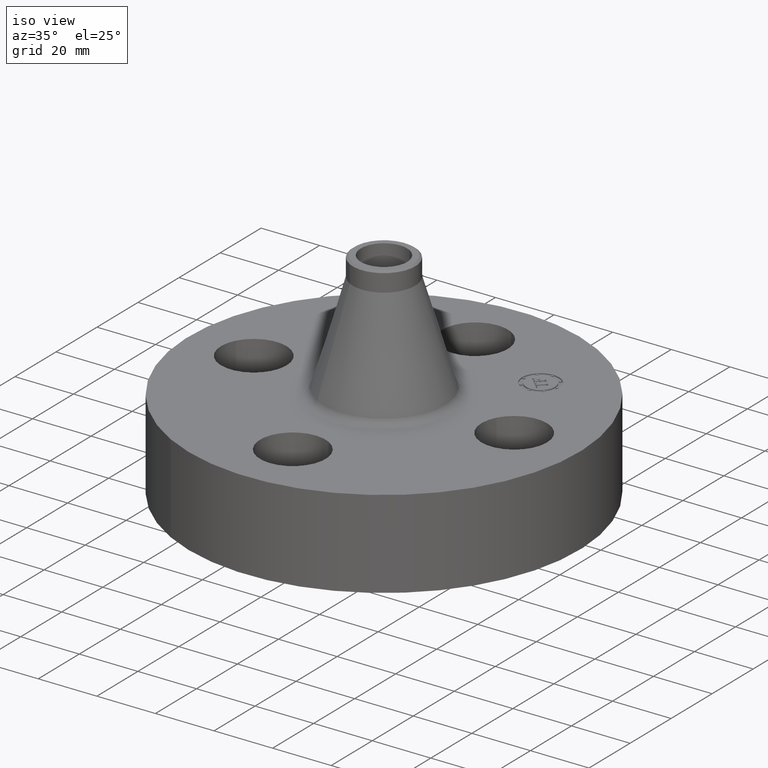
[diagram: clean part render]
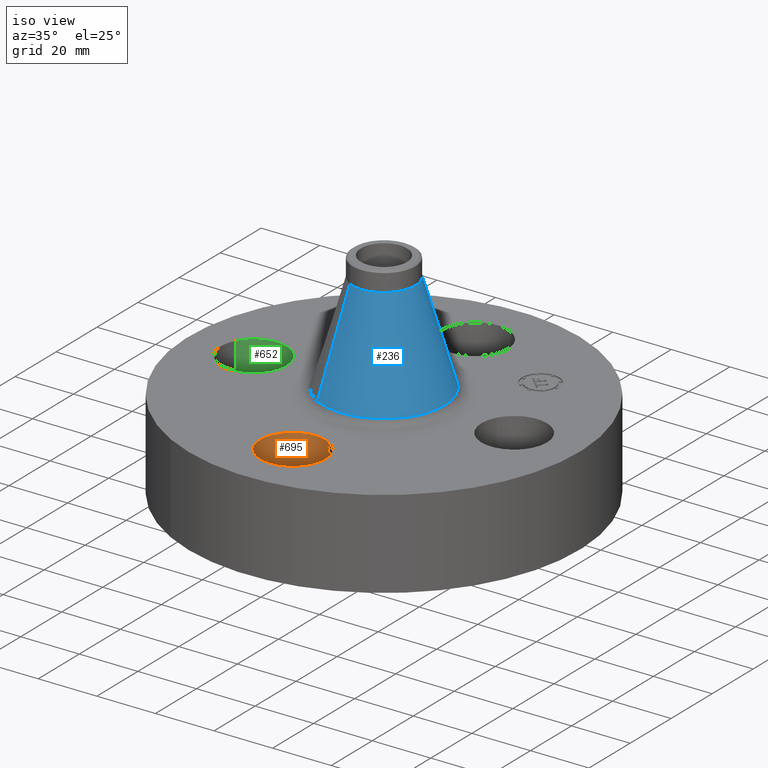
[diagram: same view with three faces highlighted in distinct colors, each labeled with its STEP entity id]
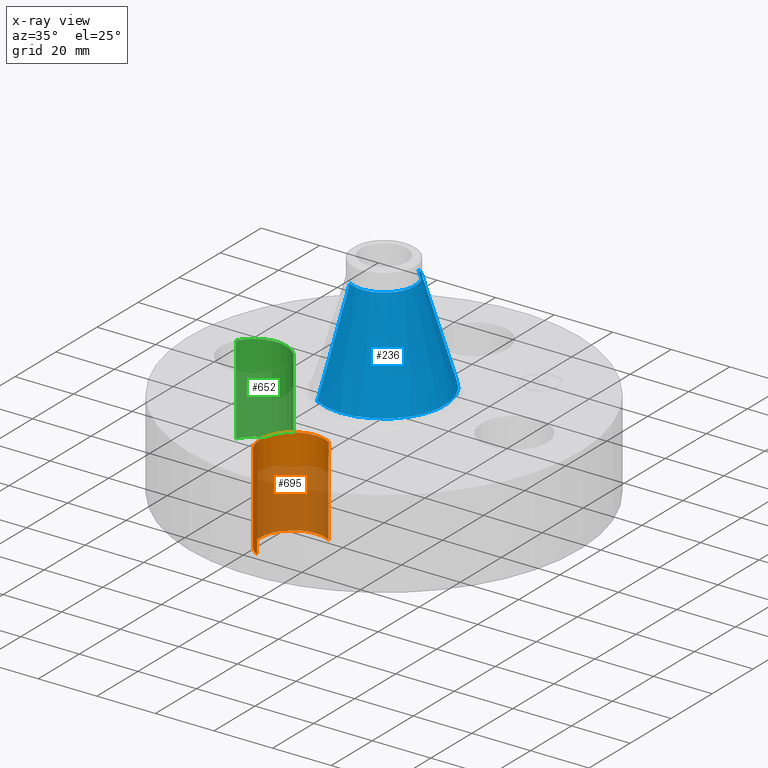
[diagram: x-ray of the same camera — body ghosted, the three highlighted faces saturated]
A machine part, iso view with three faces highlighted in distinct colors.
The next image is the same camera in x-ray (body ghosted, the three faces saturated) — at least one of them is partly hidden behind the body in this view.
Their STEP definitions:

[orange] entity #695 — the highlighted cylindrical surface (partial cylindrical patch) has radius 11.176 mm, axis along (0, -0, -1).
#523=AXIS2_PLACEMENT_3D('Circle Axis2P3D',#521,#522,$) ;
#656=AXIS2_PLACEMENT_3D('Cylinder Axis2P3D',#653,#654,#655) ;
#686=AXIS2_PLACEMENT_3D('Circle Axis2P3D',#684,#685,$) ;
#516=CARTESIAN_POINT('Vertex',(0.210947236987,-1.36386367277,0.)) ;
#518=CARTESIAN_POINT('Vertex',(-0.210947236987,-2.13613632724,0.)) ;
#521=CARTESIAN_POINT('Axis2P3D Location',(3.49676543189E-017,-1.75000000001,0.)) ;
#653=CARTESIAN_POINT('Axis2P3D Location',(1.07156594926E-016,-1.75000000001,1.18606299213)) ;
#658=CARTESIAN_POINT('Line Origine',(0.210947236987,-1.36386367277,0.595000000002)) ;
#662=CARTESIAN_POINT('Vertex',(0.210947236987,-1.36386367277,1.19)) ;
#665=CARTESIAN_POINT('Line Origine',(-0.210947236987,-2.13613632724,0.595000000002)) ;
#669=CARTESIAN_POINT('Vertex',(-0.210947236987,-2.13613632724,1.19)) ;
#684=CARTESIAN_POINT('Axis2P3D Location',(1.07156594926E-016,-1.75000000001,1.19)) ;
#522=DIRECTION('Axis2P3D Direction',(0.,0.,-0.0393700787402)) ;
#654=DIRECTION('Axis2P3D Direction',(0.,-0.,-0.0393700787402)) ;
#655=DIRECTION('Axis2P3D XDirection',(-0.0188750212049,-0.0345504945626,0.)) ;
#659=DIRECTION('Vector Direction',(0.,0.,-0.0393700787402)) ;
#666=DIRECTION('Vector Direction',(0.,0.,-0.0393700787402)) ;
#685=DIRECTION('Axis2P3D Direction',(0.,-0.,-0.0393700787402)) ;
#660=VECTOR('Line Direction',#659,0.0393700787402) ;
#667=VECTOR('Line Direction',#666,0.0393700787402) ;
#690=ORIENTED_EDGE('',*,*,#671,.F.) ;
#691=ORIENTED_EDGE('',*,*,#525,.T.) ;
#692=ORIENTED_EDGE('',*,*,#664,.T.) ;
#693=ORIENTED_EDGE('',*,*,#688,.F.) ;
#695=ADVANCED_FACE('PartBody',(#694),#657,.F.) ;
#524=CIRCLE('generated circle',#523,0.440000000002) ;
#687=CIRCLE('generated circle',#686,0.440000000002) ;
#657=CYLINDRICAL_SURFACE('generated cylinder',#656,0.440000000002) ;
#525=EDGE_CURVE('',#519,#517,#524,.T.) ;
#664=EDGE_CURVE('',#517,#663,#661,.F.) ;
#671=EDGE_CURVE('',#519,#670,#668,.F.) ;
#688=EDGE_CURVE('',#670,#663,#687,.T.) ;
#689=EDGE_LOOP('',(#690,#691,#692,#693)) ;
#694=FACE_OUTER_BOUND('',#689,.T.) ;
#661=LINE('Line',#658,#660) ;
#668=LINE('Line',#665,#667) ;
#517=VERTEX_POINT('',#516) ;
#519=VERTEX_POINT('',#518) ;
#663=VERTEX_POINT('',#662) ;
#670=VERTEX_POINT('',#669) ;

[blue] entity #236 — the highlighted conical surface has half-angle 16.546 deg.
#172=AXIS2_PLACEMENT_3D('Circle Axis2P3D',#170,#171,$) ;
#209=AXIS2_PLACEMENT_3D('Cone Axis2P3D',#206,#207,#208) ;
#220=AXIS2_PLACEMENT_3D('Circle Axis2P3D',#218,#219,$) ;
#167=CARTESIAN_POINT('Vertex',(0.392890334218,0.719180932765,1.27582585956)) ;
#170=CARTESIAN_POINT('Axis2P3D Location',(0.,0.,1.27582585956)) ;
#174=CARTESIAN_POINT('Vertex',(-0.392890334218,-0.719180932765,1.27582585956)) ;
#206=CARTESIAN_POINT('Axis2P3D Location',(0.,0.,2.62056033375)) ;
#211=CARTESIAN_POINT('Line Origine',(0.297124530216,0.54388280438,1.94819309666)) ;
#215=CARTESIAN_POINT('Vertex',(0.201358726215,0.368584675995,2.62056033375)) ;
#218=CARTESIAN_POINT('Axis2P3D Location',(0.,0.,2.62056033375)) ;
#222=CARTESIAN_POINT('Vertex',(-0.201358726215,-0.368584675995,2.62056033375)) ;
#225=CARTESIAN_POINT('Line Origine',(-0.297124530216,-0.54388280438,1.94819309666)) ;
#171=DIRECTION('Axis2P3D Direction',(0.,0.,-0.0393700787402)) ;
#207=DIRECTION('Axis2P3D Direction',(0.,0.,-0.0393700787402)) ;
#208=DIRECTION('Axis2P3D XDirection',(-0.0188750212049,-0.0345504945626,0.)) ;
#212=DIRECTION('Vector Direction',(0.00537531354635,0.00983944544695,-0.0377398253518)) ;
#219=DIRECTION('Axis2P3D Direction',(0.,0.,-0.0393700787402)) ;
#226=DIRECTION('Vector Direction',(-0.00537531354635,-0.00983944544695,-0.0377398253518)) ;
#213=VECTOR('Line Direction',#212,0.0393700787402) ;
#227=VECTOR('Line Direction',#226,0.0393700787402) ;
#231=ORIENTED_EDGE('',*,*,#176,.F.) ;
#232=ORIENTED_EDGE('',*,*,#217,.T.) ;
#233=ORIENTED_EDGE('',*,*,#224,.T.) ;
#234=ORIENTED_EDGE('',*,*,#229,.F.) ;
#236=ADVANCED_FACE('PartBody',(#235),#210,.T.) ;
#173=CIRCLE('generated circle',#172,0.819502305533) ;
#221=CIRCLE('generated circle',#220,0.420000000002) ;
#210=CONICAL_SURFACE('Cone',#209,0.420000000002,0.288781615546) ;
#176=EDGE_CURVE('',#168,#175,#173,.T.) ;
#217=EDGE_CURVE('',#168,#216,#214,.F.) ;
#224=EDGE_CURVE('',#216,#223,#221,.T.) ;
#229=EDGE_CURVE('',#175,#223,#228,.F.) ;
#230=EDGE_LOOP('',(#231,#232,#233,#234)) ;
#235=FACE_OUTER_BOUND('',#230,.T.) ;
#214=LINE('Line',#211,#213) ;
#228=LINE('Line',#225,#227) ;
#168=VERTEX_POINT('',#167) ;
#175=VERTEX_POINT('',#174) ;
#216=VERTEX_POINT('',#215) ;
#223=VERTEX_POINT('',#222) ;

[green] entity #652 — the highlighted cylindrical surface (partial cylindrical patch) has radius 11.176 mm, axis along (-0, 0, -1).
#541=AXIS2_PLACEMENT_3D('Circle Axis2P3D',#539,#540,$) ;
#613=AXIS2_PLACEMENT_3D('Cylinder Axis2P3D',#610,#611,#612) ;
#643=AXIS2_PLACEMENT_3D('Circle Axis2P3D',#641,#642,$) ;
#534=CARTESIAN_POINT('Vertex',(-1.36386367277,-0.210947236987,0.)) ;
#536=CARTESIAN_POINT('Vertex',(-2.13613632724,0.210947236987,0.)) ;
#539=CARTESIAN_POINT('Axis2P3D Location',(-1.75000000001,-2.79741234551E-016,0.)) ;
#610=CARTESIAN_POINT('Axis2P3D Location',(-1.75000000001,-2.14313189852E-016,1.18606299213)) ;
#615=CARTESIAN_POINT('Line Origine',(-1.36386367277,-0.210947236987,0.595000000002)) ;
#619=CARTESIAN_POINT('Vertex',(-1.36386367277,-0.210947236987,1.19)) ;
#622=CARTESIAN_POINT('Line Origine',(-2.13613632724,0.210947236987,0.595000000002)) ;
#626=CARTESIAN_POINT('Vertex',(-2.13613632724,0.210947236987,1.19)) ;
#641=CARTESIAN_POINT('Axis2P3D Location',(-1.75000000001,-2.14313189852E-016,1.19)) ;
#540=DIRECTION('Axis2P3D Direction',(0.,0.,-0.0393700787402)) ;
#611=DIRECTION('Axis2P3D Direction',(-0.,0.,-0.0393700787402)) ;
#612=DIRECTION('Axis2P3D XDirection',(-0.0345504945626,0.0188750212049,0.)) ;
#616=DIRECTION('Vector Direction',(0.,0.,-0.0393700787402)) ;
#623=DIRECTION('Vector Direction',(0.,0.,-0.0393700787402)) ;
#642=DIRECTION('Axis2P3D Direction',(-0.,0.,-0.0393700787402)) ;
#617=VECTOR('Line Direction',#616,0.0393700787402) ;
#624=VECTOR('Line Direction',#623,0.0393700787402) ;
#647=ORIENTED_EDGE('',*,*,#628,.F.) ;
#648=ORIENTED_EDGE('',*,*,#543,.T.) ;
#649=ORIENTED_EDGE('',*,*,#621,.T.) ;
#650=ORIENTED_EDGE('',*,*,#645,.F.) ;
#652=ADVANCED_FACE('PartBody',(#651),#614,.F.) ;
#542=CIRCLE('generated circle',#541,0.440000000002) ;
#644=CIRCLE('generated circle',#643,0.440000000002) ;
#614=CYLINDRICAL_SURFACE('generated cylinder',#613,0.440000000002) ;
#543=EDGE_CURVE('',#537,#535,#542,.T.) ;
#621=EDGE_CURVE('',#535,#620,#618,.F.) ;
#628=EDGE_CURVE('',#537,#627,#625,.F.) ;
#645=EDGE_CURVE('',#627,#620,#644,.T.) ;
#646=EDGE_LOOP('',(#647,#648,#649,#650)) ;
#651=FACE_OUTER_BOUND('',#646,.T.) ;
#618=LINE('Line',#615,#617) ;
#625=LINE('Line',#622,#624) ;
#535=VERTEX_POINT('',#534) ;
#537=VERTEX_POINT('',#536) ;
#620=VERTEX_POINT('',#619) ;
#627=VERTEX_POINT('',#626) ;